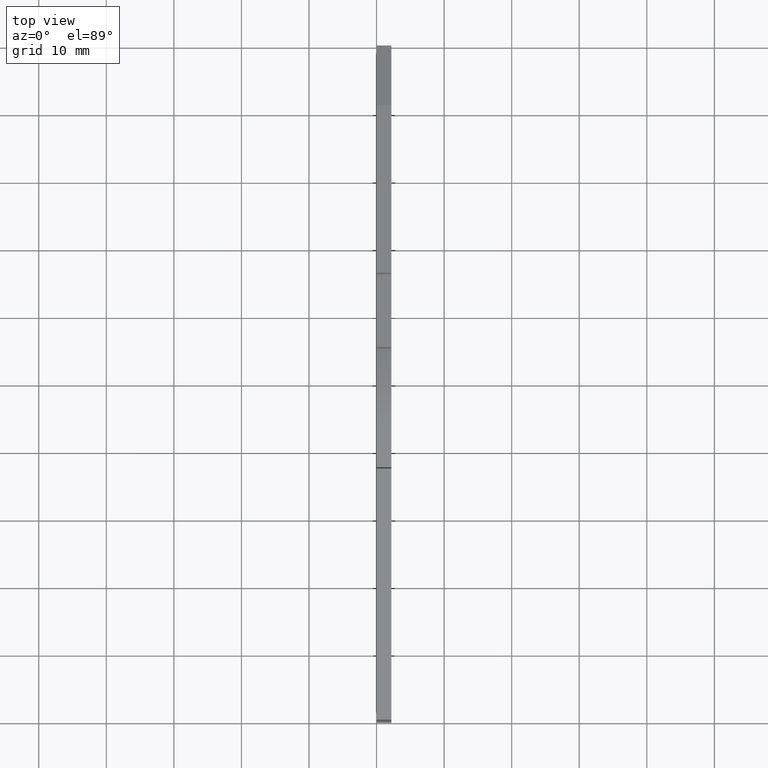
[diagram: clean part render]
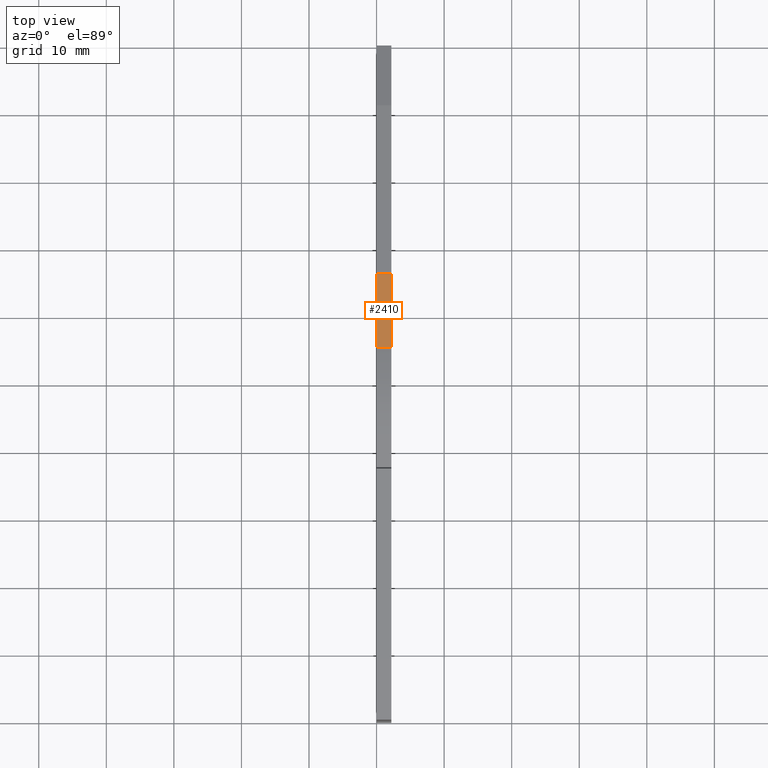
[diagram: same view with one face highlighted and labeled with its STEP entity id]
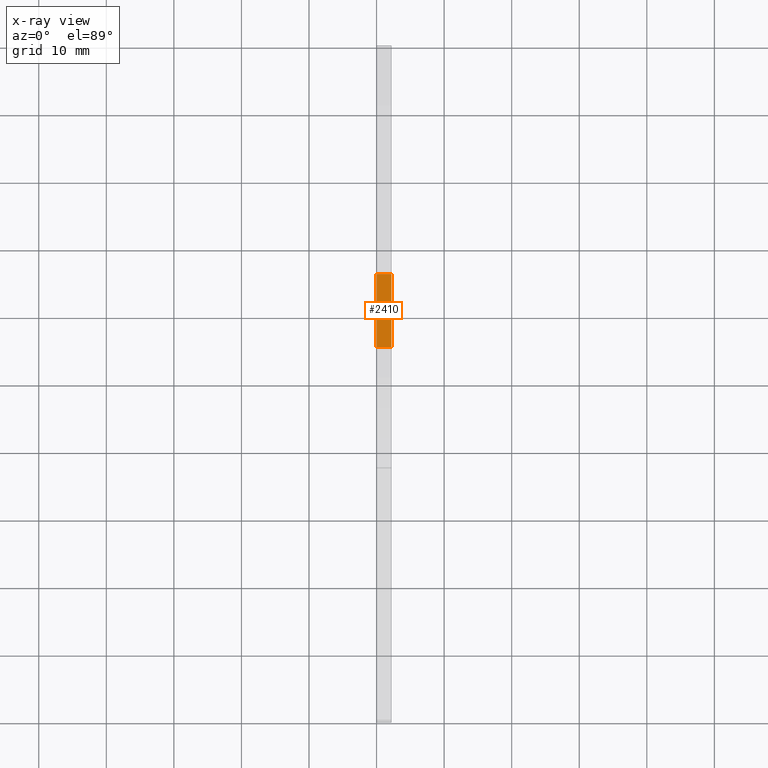
[diagram: x-ray of the same camera — body ghosted, the highlighted face saturated]
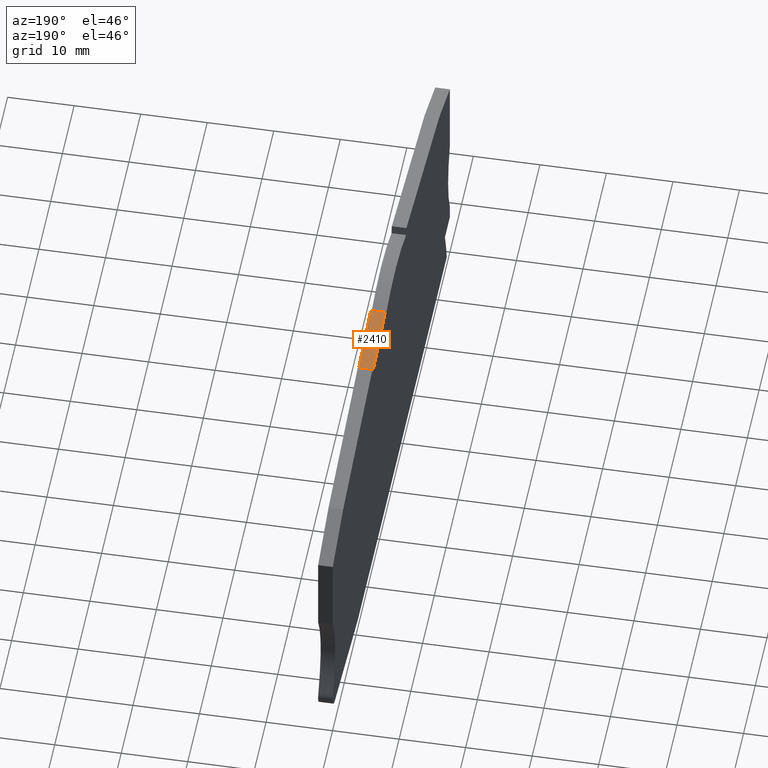
[diagram: same view with one face highlighted and labeled with its STEP entity id]
A machine part, top view. The second image highlights one B-rep face of the part: STEP entity #2410.
The next image is the same camera in x-ray: the body ghosted, the highlighted face saturated — about 0% of this face is hidden behind the body in this view.
A second angle (auxiliary view) of the same face is appended — the face is thin or edge-on in the first view.
In plain terms, the highlighted planar face has unit normal (-0, 0.1736, 0.9848).
Its self-contained STEP definition (entity closure, byte-faithful):
#530=CARTESIAN_POINT('',(51.6290292403111,-34.5553054080874,
125.750000000043));
#540=DIRECTION('',(0.984807753012213,-0.173648177666904,
4.62453901302037E-13));
#550=VECTOR('',#540,1.);
#560=LINE('',#530,#550);
#570=CARTESIAN_POINT('',(38.99381641264,-32.3273764795756,
125.750000000037));
#580=VERTEX_POINT('',#570);
#590=CARTESIAN_POINT('',(49.86000735476,-34.243379120201,
125.750000000042));
#600=VERTEX_POINT('',#590);
#610=EDGE_CURVE('',#580,#600,#560,.T.);
#2110=CARTESIAN_POINT('',(49.6138054164701,-34.1999670757759,
123.550000000042));
#2120=DIRECTION('',(0.173648177666904,0.984807753012213,
8.52324188511956E-13));
#2130=DIRECTION('',(-0.984807753012213,0.173648177666904,
-4.62453901302037E-13));
#2140=AXIS2_PLACEMENT_3D('',#2110,#2120,#2130);
#2150=PLANE('',#2140);
#2160=CARTESIAN_POINT('',(51.6290292403125,-34.5553054080857,
123.550000000043));
#2170=DIRECTION('',(0.984807753012213,-0.173648177666904,
4.62453901302037E-13));
#2180=VECTOR('',#2170,1.);
#2190=LINE('',#2160,#2180);
#2200=CARTESIAN_POINT('',(38.9938164126413,-32.327376479574,
123.550000000037));
#2210=VERTEX_POINT('',#2200);
#2220=CARTESIAN_POINT('',(49.8600073547613,-34.2433791201993,
123.550000000042));
#2230=VERTEX_POINT('',#2220);
#2240=EDGE_CURVE('',#2210,#2230,#2190,.T.);
#2250=ORIENTED_EDGE('',*,*,#2240,.F.);
#2260=CARTESIAN_POINT('',(49.8600073547613,-34.2433791201994,
123.550000000042));
#2270=DIRECTION('',(-6.03432729529515E-13,-7.59071191710367E-13,1.));
#2280=VECTOR('',#2270,1.);
#2290=LINE('',#2260,#2280);
#2300=EDGE_CURVE('',#2230,#600,#2290,.T.);
#2310=ORIENTED_EDGE('',*,*,#2300,.F.);
#2320=ORIENTED_EDGE('',*,*,#610,.T.);
#2330=CARTESIAN_POINT('',(38.9938164126413,-32.327376479574,
123.550000000037));
#2340=DIRECTION('',(6.03432729529515E-13,7.59071191710367E-13,-1.));
#2350=VECTOR('',#2340,1.);
#2360=LINE('',#2330,#2350);
#2370=EDGE_CURVE('',#580,#2210,#2360,.T.);
#2380=ORIENTED_EDGE('',*,*,#2370,.F.);
#2390=EDGE_LOOP('',(#2380,#2320,#2310,#2250));
#2400=FACE_OUTER_BOUND('',#2390,.T.);
#2410=ADVANCED_FACE('',(#2400),#2150,.T.);